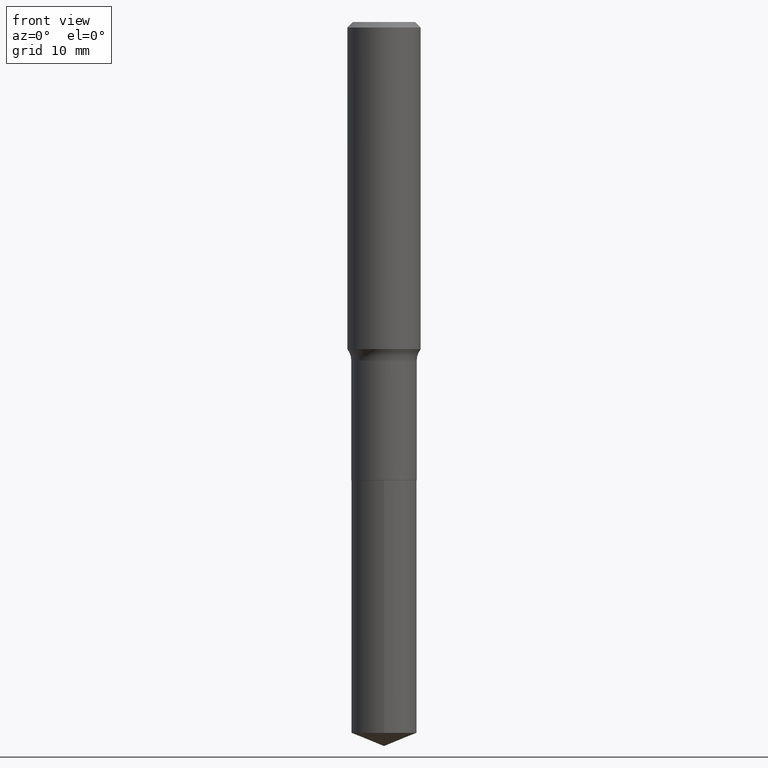
[diagram: clean part render]
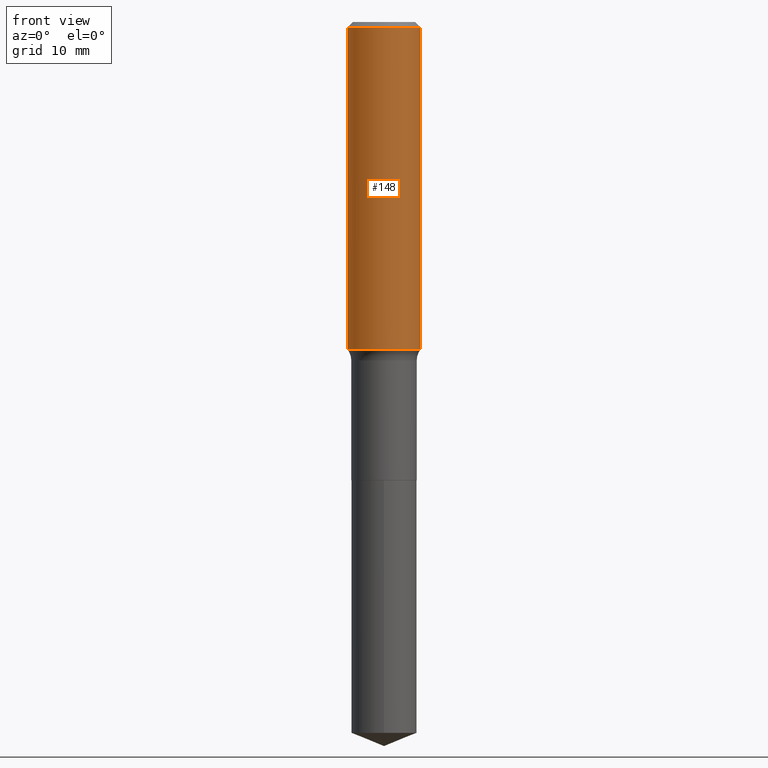
[diagram: same view with one face highlighted and labeled with its STEP entity id]
A machine part, front view. The second image highlights one B-rep face of the part: STEP entity #148.
In plain terms, the highlighted cylindrical surface (partial cylindrical patch) has radius 4.0005 mm, axis along (-0, 0, 1).
Its self-contained STEP definition (entity closure, byte-faithful):
#4 = CARTESIAN_POINT ( 'NONE',  ( -0.1575000000000000844, 1.119104808822158392E-15, -7.747322767151481189E-30 ) ) ;
#11 = CYLINDRICAL_SURFACE ( 'NONE', #265, 0.1575000000000000844 ) ;
#31 = CARTESIAN_POINT ( 'NONE',  ( 0.1575000000000000844, -1.099816621735587677E-15, 7.679978421878603638E-30 ) ) ;
#39 = DIRECTION ( 'NONE',  ( -2.445468806185136597E-29, 3.491481338843145583E-15, 1.000000000000000000 ) ) ;
#40 = DIRECTION ( 'NONE',  ( 1.000000000000000000, -6.982962677686265922E-15, 0.000000000000000000 ) ) ;
#57 = VECTOR ( 'NONE', #345, 39.37007874015748143 ) ;
#62 = ORIENTED_EDGE ( 'NONE', *, *, #220, .T. ) ;
#72 = ORIENTED_EDGE ( 'NONE', *, *, #280, .F. ) ;
#74 = EDGE_LOOP ( 'NONE', ( #487, #264, #62, #72 ) ) ;
#81 = DIRECTION ( 'NONE',  ( -2.445468806185136597E-29, 3.491481338843145583E-15, 1.000000000000000000 ) ) ;
#84 = LINE ( 'NONE', #4, #57 ) ;
#131 = DIRECTION ( 'NONE',  ( -2.445468806185136597E-29, 3.491481338843145583E-15, 1.000000000000000000 ) ) ;
#138 = CIRCLE ( 'NONE', #226, 0.1575000000000001676 ) ;
#148 = ADVANCED_FACE ( 'NONE', ( #203 ), #11, .T. ) ;
#152 = CARTESIAN_POINT ( 'NONE',  ( 3.436654127132461925E-29, -4.906631285826703729E-15, -1.405315053882673304 ) ) ;
#169 = CARTESIAN_POINT ( 'NONE',  ( 0.000000000000000000, 0.000000000000000000, 0.000000000000000000 ) ) ;
#190 = DIRECTION ( 'NONE',  ( -2.445468806185136877E-29, 3.491481338843145188E-15, 1.000000000000000000 ) ) ;
#199 = CARTESIAN_POINT ( 'NONE',  ( 0.1575000000000001676, -6.006447907562292787E-15, -1.405315053882673304 ) ) ;
#203 = FACE_OUTER_BOUND ( 'NONE', #74, .T. ) ;
#211 = VERTEX_POINT ( 'NONE', #380 ) ;
#220 = EDGE_CURVE ( 'NONE', #291, #360, #457, .T. ) ;
#226 = AXIS2_PLACEMENT_3D ( 'NONE', #152, #39, #453 ) ;
#264 = ORIENTED_EDGE ( 'NONE', *, *, #338, .T. ) ;
#265 = AXIS2_PLACEMENT_3D ( 'NONE', #169, #131, #279 ) ;
#278 = CARTESIAN_POINT ( 'NONE',  ( 5.777420054612421104E-31, -8.248624663016984002E-17, -0.02362500000000014588 ) ) ;
#279 = DIRECTION ( 'NONE',  ( 1.000000000000000000, -6.982962677686267499E-15, 4.876176775795936353E-29 ) ) ;
#280 = EDGE_CURVE ( 'NONE', #488, #360, #427, .T. ) ;
#291 = VERTEX_POINT ( 'NONE', #199 ) ;
#292 = CARTESIAN_POINT ( 'NONE',  ( -0.1575000000000000011, -1.375453957406277973E-15, -0.02362500000000014588 ) ) ;
#324 = VECTOR ( 'NONE', #190, 39.37007874015748143 ) ;
#338 = EDGE_CURVE ( 'NONE', #211, #291, #138, .T. ) ;
#345 = DIRECTION ( 'NONE',  ( -2.445468806185136877E-29, 3.491481338843145188E-15, 1.000000000000000000 ) ) ;
#360 = VERTEX_POINT ( 'NONE', #464 ) ;
#377 = EDGE_CURVE ( 'NONE', #211, #488, #84, .T. ) ;
#380 = CARTESIAN_POINT ( 'NONE',  ( -0.1575000000000001676, -3.787526477004544548E-15, -1.405315053882673304 ) ) ;
#427 = CIRCLE ( 'NONE', #492, 0.1575000000000000011 ) ;
#453 = DIRECTION ( 'NONE',  ( 1.000000000000000000, -6.982962677686267499E-15, 0.000000000000000000 ) ) ;
#457 = LINE ( 'NONE', #31, #324 ) ;
#464 = CARTESIAN_POINT ( 'NONE',  ( 0.1575000000000000011, -1.182302868365756679E-15, -0.02362500000000014588 ) ) ;
#487 = ORIENTED_EDGE ( 'NONE', *, *, #377, .F. ) ;
#488 = VERTEX_POINT ( 'NONE', #292 ) ;
#492 = AXIS2_PLACEMENT_3D ( 'NONE', #278, #81, #40 ) ;